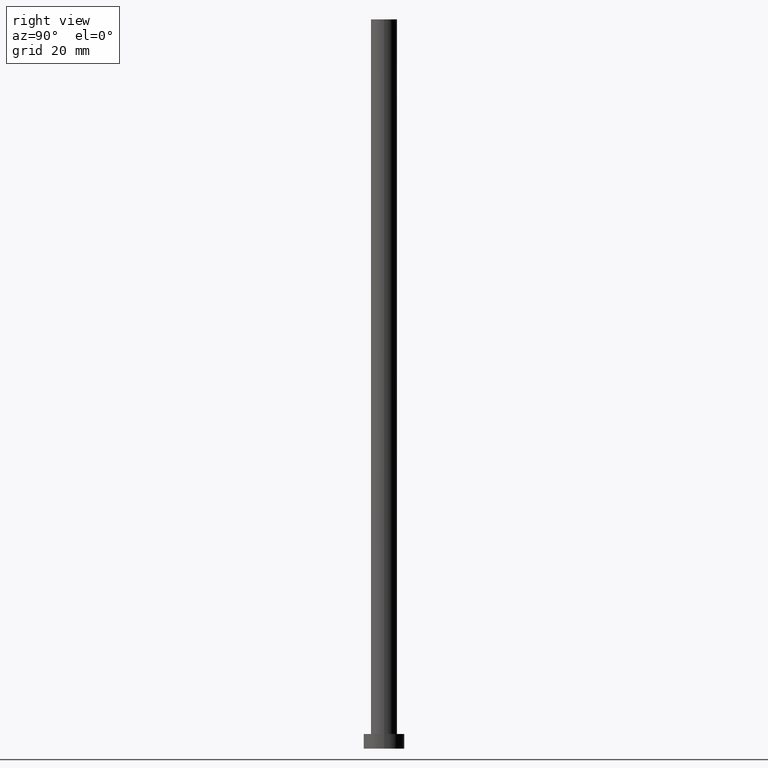
[diagram: clean part render]
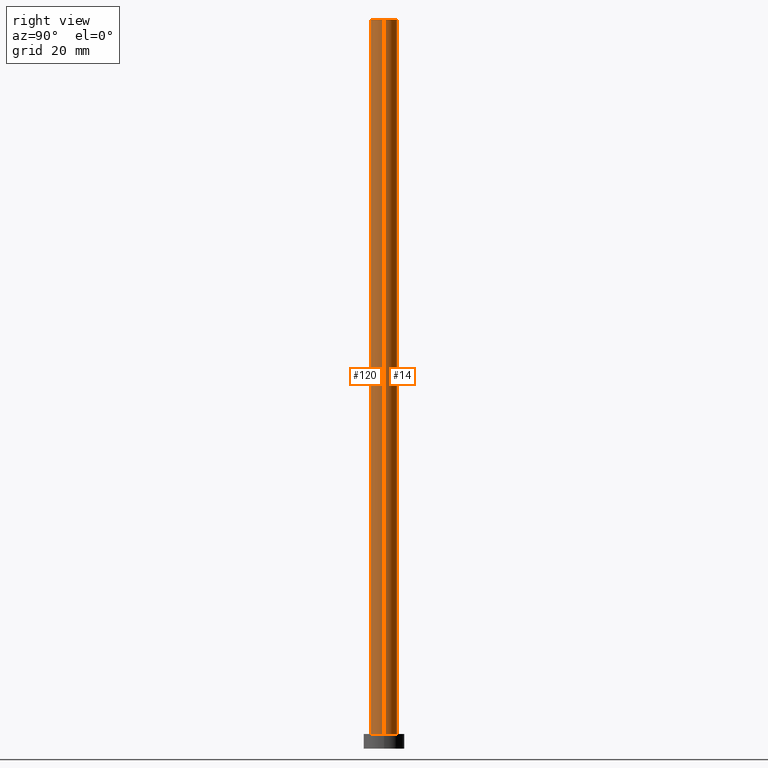
[diagram: same view with one multi-face feature highlighted, each face labeled with its STEP entity id]
A machine part, right view. The highlighted faces form ONE feature: a constant-radius fillet chain: 2 tangent blend faces with common blend radius 4.5 mm. The faces share edges in the B-rep.
Their STEP definitions:
[1] entity #120 (Cylinder):
#1 = EDGE_CURVE ( 'NONE', #84, #205, #209, .T. ) ;
#22 = DIRECTION ( 'NONE',  ( -0.000000000000000000, -0.000000000000000000, -1.000000000000000000 ) ) ;
#24 = CARTESIAN_POINT ( 'NONE',  ( -4.500000000000000888, 0.000000000000000000, 250.0000000000000000 ) ) ;
#27 = AXIS2_PLACEMENT_3D ( 'NONE', #134, #211, #253 ) ;
#33 = FACE_OUTER_BOUND ( 'NONE', #150, .T. ) ;
#34 = CYLINDRICAL_SURFACE ( 'NONE', #149, 4.500000000000000888 ) ;
#37 = VERTEX_POINT ( 'NONE', #186 ) ;
#45 = EDGE_CURVE ( 'NONE', #205, #200, #221, .T. ) ;
#50 = DIRECTION ( 'NONE',  ( -1.000000000000000000, 0.000000000000000000, 0.000000000000000000 ) ) ;
#53 = CARTESIAN_POINT ( 'NONE',  ( 0.000000000000000000, 0.000000000000000000, 250.0000000000000000 ) ) ;
#54 = VECTOR ( 'NONE', #136, 1000.000000000000000 ) ;
#72 = VECTOR ( 'NONE', #22, 1000.000000000000000 ) ;
#79 = LINE ( 'NONE', #157, #54 ) ;
#84 = VERTEX_POINT ( 'NONE', #24 ) ;
#92 = DIRECTION ( 'NONE',  ( -0.000000000000000000, -0.000000000000000000, -1.000000000000000000 ) ) ;
#120 = ADVANCED_FACE ( 'NONE', ( #33 ), #34, .T. ) ;
#134 = CARTESIAN_POINT ( 'NONE',  ( 0.000000000000000000, 0.000000000000000000, 5.000000000000000000 ) ) ;
#136 = DIRECTION ( 'NONE',  ( -0.000000000000000000, -0.000000000000000000, -1.000000000000000000 ) ) ;
#149 = AXIS2_PLACEMENT_3D ( 'NONE', #53, #92, #50 ) ;
#150 = EDGE_LOOP ( 'NONE', ( #210, #171, #215, #234 ) ) ;
#155 = CARTESIAN_POINT ( 'NONE',  ( 0.000000000000000000, 0.000000000000000000, 250.0000000000000000 ) ) ;
#157 = CARTESIAN_POINT ( 'NONE',  ( -4.500000000000000888, 0.000000000000000000, 250.0000000000000000 ) ) ;
#168 = DIRECTION ( 'NONE',  ( 1.000000000000000000, 0.000000000000000000, 0.000000000000000000 ) ) ;
#171 = ORIENTED_EDGE ( 'NONE', *, *, #1, .F. ) ;
#186 = CARTESIAN_POINT ( 'NONE',  ( -4.500000000000000888, 0.000000000000000000, 5.000000000000000000 ) ) ;
#187 = AXIS2_PLACEMENT_3D ( 'NONE', #155, #226, #168 ) ;
#200 = VERTEX_POINT ( 'NONE', #254 ) ;
#202 = CARTESIAN_POINT ( 'NONE',  ( 4.500000000000000888, 5.510910596163089556E-16, 250.0000000000000000 ) ) ;
#205 = VERTEX_POINT ( 'NONE', #231 ) ;
#209 = CIRCLE ( 'NONE', #187, 4.500000000000000888 ) ;
#210 = ORIENTED_EDGE ( 'NONE', *, *, #45, .F. ) ;
#211 = DIRECTION ( 'NONE',  ( 0.000000000000000000, 0.000000000000000000, 1.000000000000000000 ) ) ;
#215 = ORIENTED_EDGE ( 'NONE', *, *, #246, .T. ) ;
#221 = LINE ( 'NONE', #202, #72 ) ;
#225 = CIRCLE ( 'NONE', #27, 4.500000000000000888 ) ;
#226 = DIRECTION ( 'NONE',  ( 0.000000000000000000, 0.000000000000000000, 1.000000000000000000 ) ) ;
#231 = CARTESIAN_POINT ( 'NONE',  ( 4.500000000000000888, 5.510910596163089556E-16, 250.0000000000000000 ) ) ;
#234 = ORIENTED_EDGE ( 'NONE', *, *, #236, .T. ) ;
#236 = EDGE_CURVE ( 'NONE', #37, #200, #225, .T. ) ;
#246 = EDGE_CURVE ( 'NONE', #84, #37, #79, .T. ) ;
#253 = DIRECTION ( 'NONE',  ( 1.000000000000000000, 0.000000000000000000, 0.000000000000000000 ) ) ;
#254 = CARTESIAN_POINT ( 'NONE',  ( 4.500000000000000888, 5.510910596163089556E-16, 5.000000000000000000 ) ) ;
[2] entity #14 (Cylinder):
#14 = ADVANCED_FACE ( 'NONE', ( #208 ), #112, .T. ) ;
#22 = DIRECTION ( 'NONE',  ( -0.000000000000000000, -0.000000000000000000, -1.000000000000000000 ) ) ;
#24 = CARTESIAN_POINT ( 'NONE',  ( -4.500000000000000888, 0.000000000000000000, 250.0000000000000000 ) ) ;
#32 = AXIS2_PLACEMENT_3D ( 'NONE', #137, #207, #39 ) ;
#35 = CARTESIAN_POINT ( 'NONE',  ( 0.000000000000000000, 0.000000000000000000, 250.0000000000000000 ) ) ;
#37 = VERTEX_POINT ( 'NONE', #186 ) ;
#39 = DIRECTION ( 'NONE',  ( 1.000000000000000000, 0.000000000000000000, 0.000000000000000000 ) ) ;
#43 = EDGE_LOOP ( 'NONE', ( #183, #216, #69, #158 ) ) ;
#45 = EDGE_CURVE ( 'NONE', #205, #200, #221, .T. ) ;
#54 = VECTOR ( 'NONE', #136, 1000.000000000000000 ) ;
#62 = AXIS2_PLACEMENT_3D ( 'NONE', #85, #239, #237 ) ;
#69 = ORIENTED_EDGE ( 'NONE', *, *, #173, .T. ) ;
#72 = VECTOR ( 'NONE', #22, 1000.000000000000000 ) ;
#75 = DIRECTION ( 'NONE',  ( -0.000000000000000000, -0.000000000000000000, -1.000000000000000000 ) ) ;
#77 = EDGE_CURVE ( 'NONE', #205, #84, #133, .T. ) ;
#79 = LINE ( 'NONE', #157, #54 ) ;
#84 = VERTEX_POINT ( 'NONE', #24 ) ;
#85 = CARTESIAN_POINT ( 'NONE',  ( 0.000000000000000000, 0.000000000000000000, 250.0000000000000000 ) ) ;
#112 = CYLINDRICAL_SURFACE ( 'NONE', #163, 4.500000000000000888 ) ;
#133 = CIRCLE ( 'NONE', #62, 4.500000000000000888 ) ;
#136 = DIRECTION ( 'NONE',  ( -0.000000000000000000, -0.000000000000000000, -1.000000000000000000 ) ) ;
#137 = CARTESIAN_POINT ( 'NONE',  ( 0.000000000000000000, 0.000000000000000000, 5.000000000000000000 ) ) ;
#154 = DIRECTION ( 'NONE',  ( -1.000000000000000000, 0.000000000000000000, 0.000000000000000000 ) ) ;
#157 = CARTESIAN_POINT ( 'NONE',  ( -4.500000000000000888, 0.000000000000000000, 250.0000000000000000 ) ) ;
#158 = ORIENTED_EDGE ( 'NONE', *, *, #246, .F. ) ;
#163 = AXIS2_PLACEMENT_3D ( 'NONE', #35, #75, #154 ) ;
#173 = EDGE_CURVE ( 'NONE', #200, #37, #232, .T. ) ;
#183 = ORIENTED_EDGE ( 'NONE', *, *, #77, .F. ) ;
#186 = CARTESIAN_POINT ( 'NONE',  ( -4.500000000000000888, 0.000000000000000000, 5.000000000000000000 ) ) ;
#200 = VERTEX_POINT ( 'NONE', #254 ) ;
#202 = CARTESIAN_POINT ( 'NONE',  ( 4.500000000000000888, 5.510910596163089556E-16, 250.0000000000000000 ) ) ;
#205 = VERTEX_POINT ( 'NONE', #231 ) ;
#207 = DIRECTION ( 'NONE',  ( 0.000000000000000000, 0.000000000000000000, 1.000000000000000000 ) ) ;
#208 = FACE_OUTER_BOUND ( 'NONE', #43, .T. ) ;
#216 = ORIENTED_EDGE ( 'NONE', *, *, #45, .T. ) ;
#221 = LINE ( 'NONE', #202, #72 ) ;
#231 = CARTESIAN_POINT ( 'NONE',  ( 4.500000000000000888, 5.510910596163089556E-16, 250.0000000000000000 ) ) ;
#232 = CIRCLE ( 'NONE', #32, 4.500000000000000888 ) ;
#237 = DIRECTION ( 'NONE',  ( 1.000000000000000000, 0.000000000000000000, 0.000000000000000000 ) ) ;
#239 = DIRECTION ( 'NONE',  ( 0.000000000000000000, 0.000000000000000000, 1.000000000000000000 ) ) ;
#246 = EDGE_CURVE ( 'NONE', #84, #37, #79, .T. ) ;
#254 = CARTESIAN_POINT ( 'NONE',  ( 4.500000000000000888, 5.510910596163089556E-16, 5.000000000000000000 ) ) ;